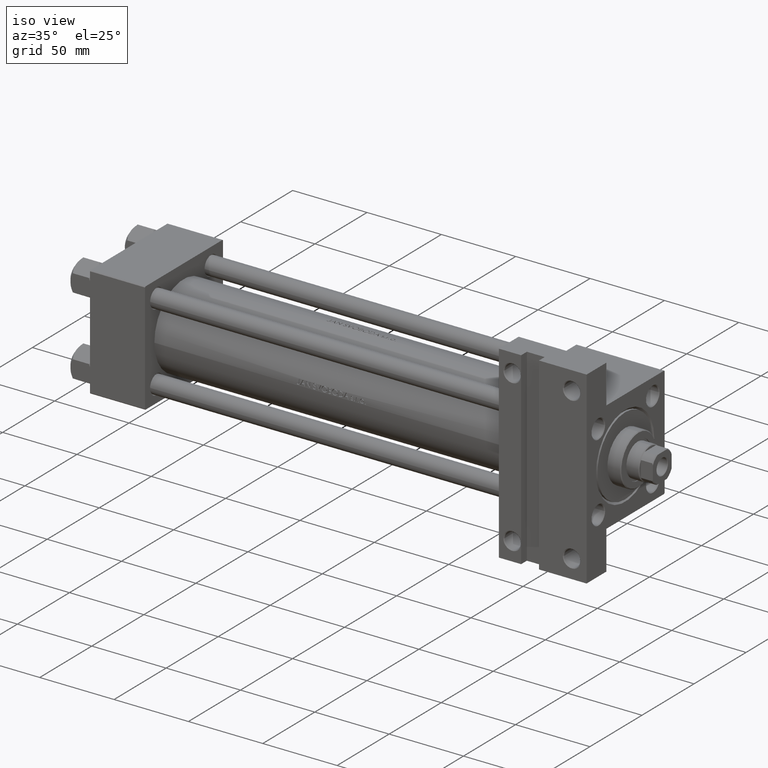
[diagram: clean part render]
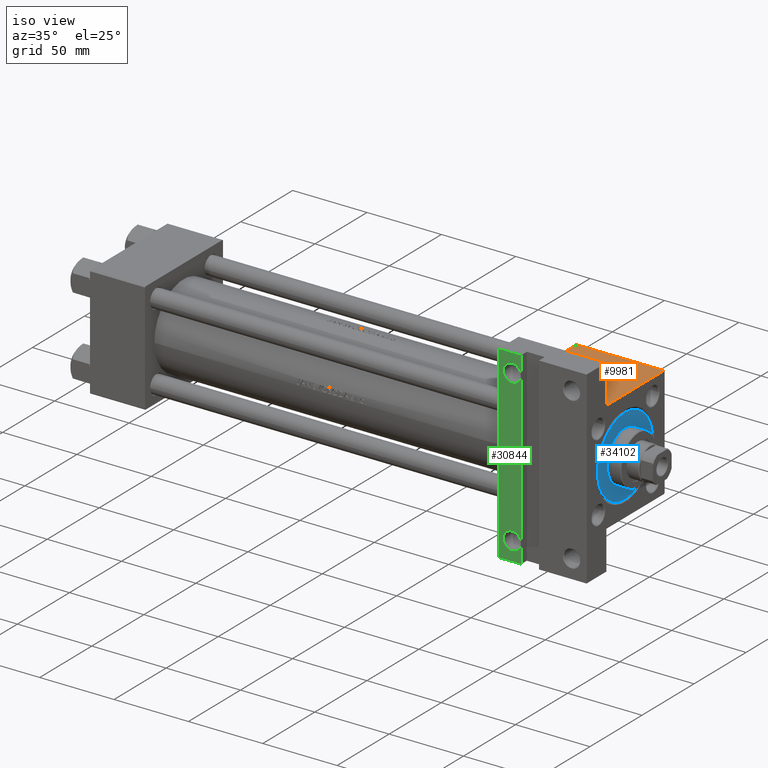
[diagram: same view with three faces highlighted in distinct colors, each labeled with its STEP entity id]
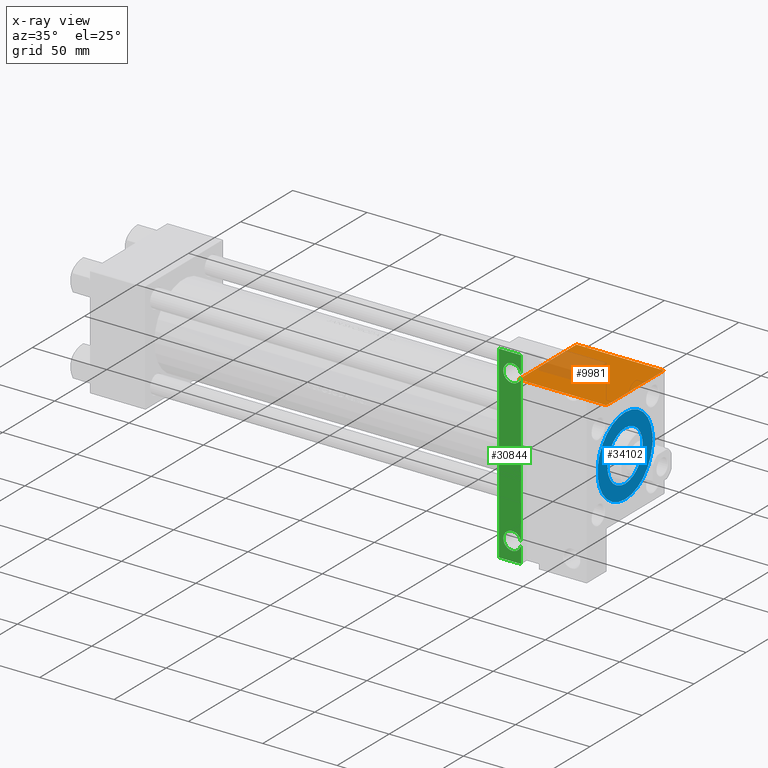
[diagram: x-ray of the same camera — body ghosted, the three highlighted faces saturated]
A machine part, iso view with three faces highlighted in distinct colors.
The next image is the same camera in x-ray (body ghosted, the three faces saturated) — at least one of them is partly hidden behind the body in this view.
Their STEP definitions:

[orange] entity #9981 — the highlighted planar face has unit normal (0, -0, -1).
#238 = CARTESIAN_POINT ( 'NONE',  ( 274.9999999999999432, -37.50000000000000000, -18.50000000000000000 ) ) ;
#1273 = CARTESIAN_POINT ( 'NONE',  ( 274.9999999999999432, -37.50000000000000000, 36.99999999999992184 ) ) ;
#1723 = VERTEX_POINT ( 'NONE', #1273 ) ;
#1865 = DIRECTION ( 'NONE',  ( 0.000000000000000000, -9.251858538542972814E-17, -1.000000000000000000 ) ) ;
#9235 = AXIS2_PLACEMENT_3D ( 'NONE', #41882, #15916, #30824 ) ;
#9981 = ADVANCED_FACE ( 'NONE', ( #16157 ), #25616, .F. ) ;
#11024 = ORIENTED_EDGE ( 'NONE', *, *, #23103, .T. ) ;
#11627 = DIRECTION ( 'NONE',  ( -1.000000000000000000, 0.000000000000000000, 0.000000000000000000 ) ) ;
#15916 = DIRECTION ( 'NONE',  ( 0.000000000000000000, 1.000000000000000000, -9.251858538542972814E-17 ) ) ;
#16157 = FACE_OUTER_BOUND ( 'NONE', #27418, .T. ) ;
#17390 = VECTOR ( 'NONE', #27103, 1000.000000000000000 ) ;
#18554 = LINE ( 'NONE', #238, #38170 ) ;
#19509 = ORIENTED_EDGE ( 'NONE', *, *, #38452, .T. ) ;
#21110 = ORIENTED_EDGE ( 'NONE', *, *, #23471, .T. ) ;
#21350 = VECTOR ( 'NONE', #1865, 1000.000000000000000 ) ;
#22813 = EDGE_CURVE ( 'NONE', #41445, #36536, #30301, .T. ) ;
#23103 = EDGE_CURVE ( 'NONE', #1723, #41641, #30716, .T. ) ;
#23471 = EDGE_CURVE ( 'NONE', #41641, #36536, #18554, .T. ) ;
#25616 = PLANE ( 'NONE',  #9235 ) ;
#26507 = CARTESIAN_POINT ( 'NONE',  ( 333.9999999999999432, -37.50000000000000000, 36.99999999999992184 ) ) ;
#27103 = DIRECTION ( 'NONE',  ( 0.000000000000000000, -9.251858538542972814E-17, -1.000000000000000000 ) ) ;
#27108 = CARTESIAN_POINT ( 'NONE',  ( 274.9999999999999432, -37.50000000000000000, -18.50000000000000000 ) ) ;
#27418 = EDGE_LOOP ( 'NONE', ( #39599, #19509, #11024, #21110 ) ) ;
#29362 = CARTESIAN_POINT ( 'NONE',  ( 333.9999999999999432, -37.50000000000000711, -18.50000000000000355 ) ) ;
#29458 = CARTESIAN_POINT ( 'NONE',  ( 333.9999999999999432, -37.50000000000000000, 36.99999999999992184 ) ) ;
#30301 = LINE ( 'NONE', #45679, #21350 ) ;
#30391 = LINE ( 'NONE', #29458, #39293 ) ;
#30716 = LINE ( 'NONE', #45389, #17390 ) ;
#30824 = DIRECTION ( 'NONE',  ( 0.000000000000000000, 9.251858538542972814E-17, 1.000000000000000000 ) ) ;
#36536 = VERTEX_POINT ( 'NONE', #29362 ) ;
#38170 = VECTOR ( 'NONE', #44283, 1000.000000000000000 ) ;
#38452 = EDGE_CURVE ( 'NONE', #41445, #1723, #30391, .T. ) ;
#39293 = VECTOR ( 'NONE', #11627, 1000.000000000000000 ) ;
#39599 = ORIENTED_EDGE ( 'NONE', *, *, #22813, .F. ) ;
#41445 = VERTEX_POINT ( 'NONE', #26507 ) ;
#41641 = VERTEX_POINT ( 'NONE', #27108 ) ;
#41882 = CARTESIAN_POINT ( 'NONE',  ( 333.9999999999999432, -37.50000000000000000, 37.49999999999997868 ) ) ;
#44283 = DIRECTION ( 'NONE',  ( 1.000000000000000000, -1.176083712526648949E-16, 0.000000000000000000 ) ) ;
#45389 = CARTESIAN_POINT ( 'NONE',  ( 274.9999999999999432, -37.50000000000000000, 37.49999999999997868 ) ) ;
#45679 = CARTESIAN_POINT ( 'NONE',  ( 333.9999999999999432, -37.50000000000000000, 37.49999999999997868 ) ) ;

[blue] entity #34102 — the highlighted planar face has unit normal (1, 0, 0).
#675 = DIRECTION ( 'NONE',  ( 0.000000000000000000, 0.000000000000000000, 1.000000000000000000 ) ) ;
#2220 = CARTESIAN_POINT ( 'NONE',  ( 0.000000000000000000, 0.000000000000000000, 28.69999999999999929 ) ) ;
#3802 = ORIENTED_EDGE ( 'NONE', *, *, #29002, .F. ) ;
#4264 = DIRECTION ( 'NONE',  ( 1.000000000000000000, 0.000000000000000000, 0.000000000000000000 ) ) ;
#4455 = AXIS2_PLACEMENT_3D ( 'NONE', #47622, #22580, #4264 ) ;
#5206 = EDGE_CURVE ( 'NONE', #5810, #33002, #25993, .T. ) ;
#5232 = AXIS2_PLACEMENT_3D ( 'NONE', #2220, #35431, #24852 ) ;
#5810 = VERTEX_POINT ( 'NONE', #15998 ) ;
#6820 = CARTESIAN_POINT ( 'NONE',  ( 26.50000000000000355, 3.245314017740486554E-15, 28.69999999999999929 ) ) ;
#7529 = CIRCLE ( 'NONE', #4455, 17.00000000000000000 ) ;
#9292 = CIRCLE ( 'NONE', #20109, 26.50000000000000355 ) ;
#12101 = DIRECTION ( 'NONE',  ( 1.000000000000000000, 0.000000000000000000, 0.000000000000000000 ) ) ;
#12349 = CARTESIAN_POINT ( 'NONE',  ( 0.000000000000000000, 0.000000000000000000, 28.69999999999999929 ) ) ;
#12585 = FACE_BOUND ( 'NONE', #13763, .T. ) ;
#13763 = EDGE_LOOP ( 'NONE', ( #14618, #3802 ) ) ;
#14519 = AXIS2_PLACEMENT_3D ( 'NONE', #45773, #38558, #12101 ) ;
#14618 = ORIENTED_EDGE ( 'NONE', *, *, #27279, .F. ) ;
#15724 = DIRECTION ( 'NONE',  ( 0.000000000000000000, 0.000000000000000000, 1.000000000000000000 ) ) ;
#15998 = CARTESIAN_POINT ( 'NONE',  ( -26.50000000000000355, 0.000000000000000000, 28.69999999999999929 ) ) ;
#17057 = CARTESIAN_POINT ( 'NONE',  ( 17.00000000000000000, 2.081899558550500280E-15, 28.69999999999999929 ) ) ;
#20109 = AXIS2_PLACEMENT_3D ( 'NONE', #26666, #675, #44497 ) ;
#21338 = VERTEX_POINT ( 'NONE', #17057 ) ;
#22580 = DIRECTION ( 'NONE',  ( 0.000000000000000000, 0.000000000000000000, 1.000000000000000000 ) ) ;
#23179 = DIRECTION ( 'NONE',  ( 1.000000000000000000, 0.000000000000000000, -0.000000000000000000 ) ) ;
#24852 = DIRECTION ( 'NONE',  ( 1.000000000000000000, 0.000000000000000000, 0.000000000000000000 ) ) ;
#25993 = CIRCLE ( 'NONE', #5232, 26.50000000000000355 ) ;
#26666 = CARTESIAN_POINT ( 'NONE',  ( 0.000000000000000000, 0.000000000000000000, 28.69999999999999929 ) ) ;
#27279 = EDGE_CURVE ( 'NONE', #29383, #21338, #7529, .T. ) ;
#28505 = AXIS2_PLACEMENT_3D ( 'NONE', #12349, #15724, #23179 ) ;
#29002 = EDGE_CURVE ( 'NONE', #21338, #29383, #43690, .T. ) ;
#29383 = VERTEX_POINT ( 'NONE', #45956 ) ;
#30876 = FACE_OUTER_BOUND ( 'NONE', #38256, .T. ) ;
#33002 = VERTEX_POINT ( 'NONE', #6820 ) ;
#34102 = ADVANCED_FACE ( 'NONE', ( #12585, #30876 ), #45313, .T. ) ;
#34577 = EDGE_CURVE ( 'NONE', #33002, #5810, #9292, .T. ) ;
#35431 = DIRECTION ( 'NONE',  ( 0.000000000000000000, 0.000000000000000000, 1.000000000000000000 ) ) ;
#38256 = EDGE_LOOP ( 'NONE', ( #43619, #44548 ) ) ;
#38558 = DIRECTION ( 'NONE',  ( 0.000000000000000000, 0.000000000000000000, 1.000000000000000000 ) ) ;
#43619 = ORIENTED_EDGE ( 'NONE', *, *, #5206, .T. ) ;
#43690 = CIRCLE ( 'NONE', #14519, 17.00000000000000000 ) ;
#44497 = DIRECTION ( 'NONE',  ( 1.000000000000000000, 0.000000000000000000, 0.000000000000000000 ) ) ;
#44548 = ORIENTED_EDGE ( 'NONE', *, *, #34577, .T. ) ;
#45313 = PLANE ( 'NONE',  #28505 ) ;
#45773 = CARTESIAN_POINT ( 'NONE',  ( 0.000000000000000000, 0.000000000000000000, 28.69999999999999929 ) ) ;
#45956 = CARTESIAN_POINT ( 'NONE',  ( -17.00000000000000000, 0.000000000000000000, 28.69999999999999929 ) ) ;
#47622 = CARTESIAN_POINT ( 'NONE',  ( 0.000000000000000000, 0.000000000000000000, 28.69999999999999929 ) ) ;

[green] entity #30844 — the highlighted planar face has unit normal (0, -1, 0).
#193 = ORIENTED_EDGE ( 'NONE', *, *, #36849, .T. ) ;
#609 = VERTEX_POINT ( 'NONE', #35530 ) ;
#886 = CARTESIAN_POINT ( 'NONE',  ( 274.9999999999999432, 63.49999999999997158, -37.50000000000000000 ) ) ;
#1898 = LINE ( 'NONE', #2364, #45287 ) ;
#2188 = CARTESIAN_POINT ( 'NONE',  ( 278.0004999999999313, -51.00000000000001421, -37.50000000000000000 ) ) ;
#2364 = CARTESIAN_POINT ( 'NONE',  ( 274.9999999999999432, -63.50000000000002842, -37.50000000000000000 ) ) ;
#3508 = ORIENTED_EDGE ( 'NONE', *, *, #6900, .T. ) ;
#4511 = VERTEX_POINT ( 'NONE', #47607 ) ;
#6399 = ORIENTED_EDGE ( 'NONE', *, *, #44814, .T. ) ;
#6511 = DIRECTION ( 'NONE',  ( -0.000000000000000000, -0.000000000000000000, 1.000000000000000000 ) ) ;
#6637 = VERTEX_POINT ( 'NONE', #886 ) ;
#6829 = AXIS2_PLACEMENT_3D ( 'NONE', #46901, #42572, #13944 ) ;
#6900 = EDGE_CURVE ( 'NONE', #6637, #33009, #16651, .T. ) ;
#6914 = DIRECTION ( 'NONE',  ( -1.000000000000000000, 0.000000000000000000, -0.000000000000000000 ) ) ;
#7710 = VERTEX_POINT ( 'NONE', #37191 ) ;
#10290 = FACE_BOUND ( 'NONE', #19167, .T. ) ;
#10591 = DIRECTION ( 'NONE',  ( -1.000000000000000000, 0.000000000000000000, 0.000000000000000000 ) ) ;
#11939 = CARTESIAN_POINT ( 'NONE',  ( 284.0000000000000000, -51.00000000000001421, -37.50000000000000000 ) ) ;
#12338 = EDGE_LOOP ( 'NONE', ( #6399, #35801 ) ) ;
#13944 = DIRECTION ( 'NONE',  ( -1.000000000000000000, 0.000000000000000000, 0.000000000000000000 ) ) ;
#15211 = CARTESIAN_POINT ( 'NONE',  ( 274.9999999999999432, 37.50000000000000000, -37.50000000000000000 ) ) ;
#15632 = CARTESIAN_POINT ( 'NONE',  ( 289.9999999999999432, -63.49999999999997158, -37.50000000000000000 ) ) ;
#15899 = VERTEX_POINT ( 'NONE', #34964 ) ;
#15948 = CARTESIAN_POINT ( 'NONE',  ( 274.9999999999999432, 63.49999999999997158, -37.50000000000000000 ) ) ;
#16636 = EDGE_CURVE ( 'NONE', #6637, #609, #29418, .T. ) ;
#16651 = LINE ( 'NONE', #15948, #42344 ) ;
#17608 = DIRECTION ( 'NONE',  ( -1.000000000000000000, 0.000000000000000000, 0.000000000000000000 ) ) ;
#19167 = EDGE_LOOP ( 'NONE', ( #193, #26316 ) ) ;
#20451 = ORIENTED_EDGE ( 'NONE', *, *, #30691, .F. ) ;
#20893 = FACE_OUTER_BOUND ( 'NONE', #25523, .T. ) ;
#21244 = CIRCLE ( 'NONE', #39786, 5.999500000000046462 ) ;
#22567 = EDGE_CURVE ( 'NONE', #7710, #33347, #21244, .T. ) ;
#23341 = CARTESIAN_POINT ( 'NONE',  ( 278.0004999999999313, 51.00000000000001421, -37.50000000000000000 ) ) ;
#23632 = DIRECTION ( 'NONE',  ( 1.000000000000000000, 0.000000000000000000, 0.000000000000000000 ) ) ;
#24971 = PLANE ( 'NONE',  #37623 ) ;
#25523 = EDGE_LOOP ( 'NONE', ( #20451, #25945, #29799, #3508 ) ) ;
#25945 = ORIENTED_EDGE ( 'NONE', *, *, #29335, .T. ) ;
#26316 = ORIENTED_EDGE ( 'NONE', *, *, #22567, .T. ) ;
#26684 = LINE ( 'NONE', #15632, #36871 ) ;
#27663 = DIRECTION ( 'NONE',  ( -1.000000000000000000, -0.000000000000000000, -0.000000000000000000 ) ) ;
#29335 = EDGE_CURVE ( 'NONE', #4511, #609, #1898, .T. ) ;
#29387 = EDGE_CURVE ( 'NONE', #15899, #47560, #36033, .T. ) ;
#29418 = LINE ( 'NONE', #15211, #47288 ) ;
#29799 = ORIENTED_EDGE ( 'NONE', *, *, #16636, .F. ) ;
#30472 = DIRECTION ( 'NONE',  ( -0.000000000000000000, -0.000000000000000000, 1.000000000000000000 ) ) ;
#30544 = DIRECTION ( 'NONE',  ( 0.000000000000000000, 1.000000000000000000, 0.000000000000000000 ) ) ;
#30691 = EDGE_CURVE ( 'NONE', #4511, #33009, #26684, .T. ) ;
#30844 = ADVANCED_FACE ( 'NONE', ( #20893, #43253, #10290 ), #24971, .T. ) ;
#33009 = VERTEX_POINT ( 'NONE', #36427 ) ;
#33347 = VERTEX_POINT ( 'NONE', #2188 ) ;
#33871 = CIRCLE ( 'NONE', #41554, 5.999500000000046462 ) ;
#34964 = CARTESIAN_POINT ( 'NONE',  ( 289.9995000000000118, 51.00000000000001421, -37.50000000000000000 ) ) ;
#35530 = CARTESIAN_POINT ( 'NONE',  ( 274.9999999999999432, -63.50000000000002842, -37.50000000000000000 ) ) ;
#35801 = ORIENTED_EDGE ( 'NONE', *, *, #29387, .T. ) ;
#36033 = CIRCLE ( 'NONE', #6829, 5.999500000000046462 ) ;
#36427 = CARTESIAN_POINT ( 'NONE',  ( 289.9999999999999432, 63.49999999999997158, -37.50000000000000000 ) ) ;
#36439 = CIRCLE ( 'NONE', #37192, 5.999500000000046462 ) ;
#36849 = EDGE_CURVE ( 'NONE', #33347, #7710, #33871, .T. ) ;
#36871 = VECTOR ( 'NONE', #30544, 1000.000000000000000 ) ;
#37191 = CARTESIAN_POINT ( 'NONE',  ( 289.9995000000000118, -51.00000000000001421, -37.50000000000000000 ) ) ;
#37192 = AXIS2_PLACEMENT_3D ( 'NONE', #43102, #6511, #17608 ) ;
#37623 = AXIS2_PLACEMENT_3D ( 'NONE', #39648, #39891, #6914 ) ;
#38402 = DIRECTION ( 'NONE',  ( -1.000000000000000000, 0.000000000000000000, 0.000000000000000000 ) ) ;
#39648 = CARTESIAN_POINT ( 'NONE',  ( 333.9999999999999432, 37.50000000000000000, -37.50000000000000000 ) ) ;
#39786 = AXIS2_PLACEMENT_3D ( 'NONE', #46688, #43549, #10591 ) ;
#39891 = DIRECTION ( 'NONE',  ( 0.000000000000000000, 0.000000000000000000, -1.000000000000000000 ) ) ;
#41554 = AXIS2_PLACEMENT_3D ( 'NONE', #11939, #30472, #38402 ) ;
#42344 = VECTOR ( 'NONE', #23632, 1000.000000000000000 ) ;
#42572 = DIRECTION ( 'NONE',  ( -0.000000000000000000, -0.000000000000000000, 1.000000000000000000 ) ) ;
#43102 = CARTESIAN_POINT ( 'NONE',  ( 284.0000000000000000, 51.00000000000001421, -37.50000000000000000 ) ) ;
#43253 = FACE_BOUND ( 'NONE', #12338, .T. ) ;
#43549 = DIRECTION ( 'NONE',  ( -0.000000000000000000, -0.000000000000000000, 1.000000000000000000 ) ) ;
#44082 = DIRECTION ( 'NONE',  ( 0.000000000000000000, -1.000000000000000000, 0.000000000000000000 ) ) ;
#44814 = EDGE_CURVE ( 'NONE', #47560, #15899, #36439, .T. ) ;
#45287 = VECTOR ( 'NONE', #27663, 1000.000000000000000 ) ;
#46688 = CARTESIAN_POINT ( 'NONE',  ( 284.0000000000000000, -51.00000000000001421, -37.50000000000000000 ) ) ;
#46901 = CARTESIAN_POINT ( 'NONE',  ( 284.0000000000000000, 51.00000000000001421, -37.50000000000000000 ) ) ;
#47288 = VECTOR ( 'NONE', #44082, 1000.000000000000000 ) ;
#47560 = VERTEX_POINT ( 'NONE', #23341 ) ;
#47607 = CARTESIAN_POINT ( 'NONE',  ( 289.9999999999999432, -63.49999999999997158, -37.50000000000000000 ) ) ;